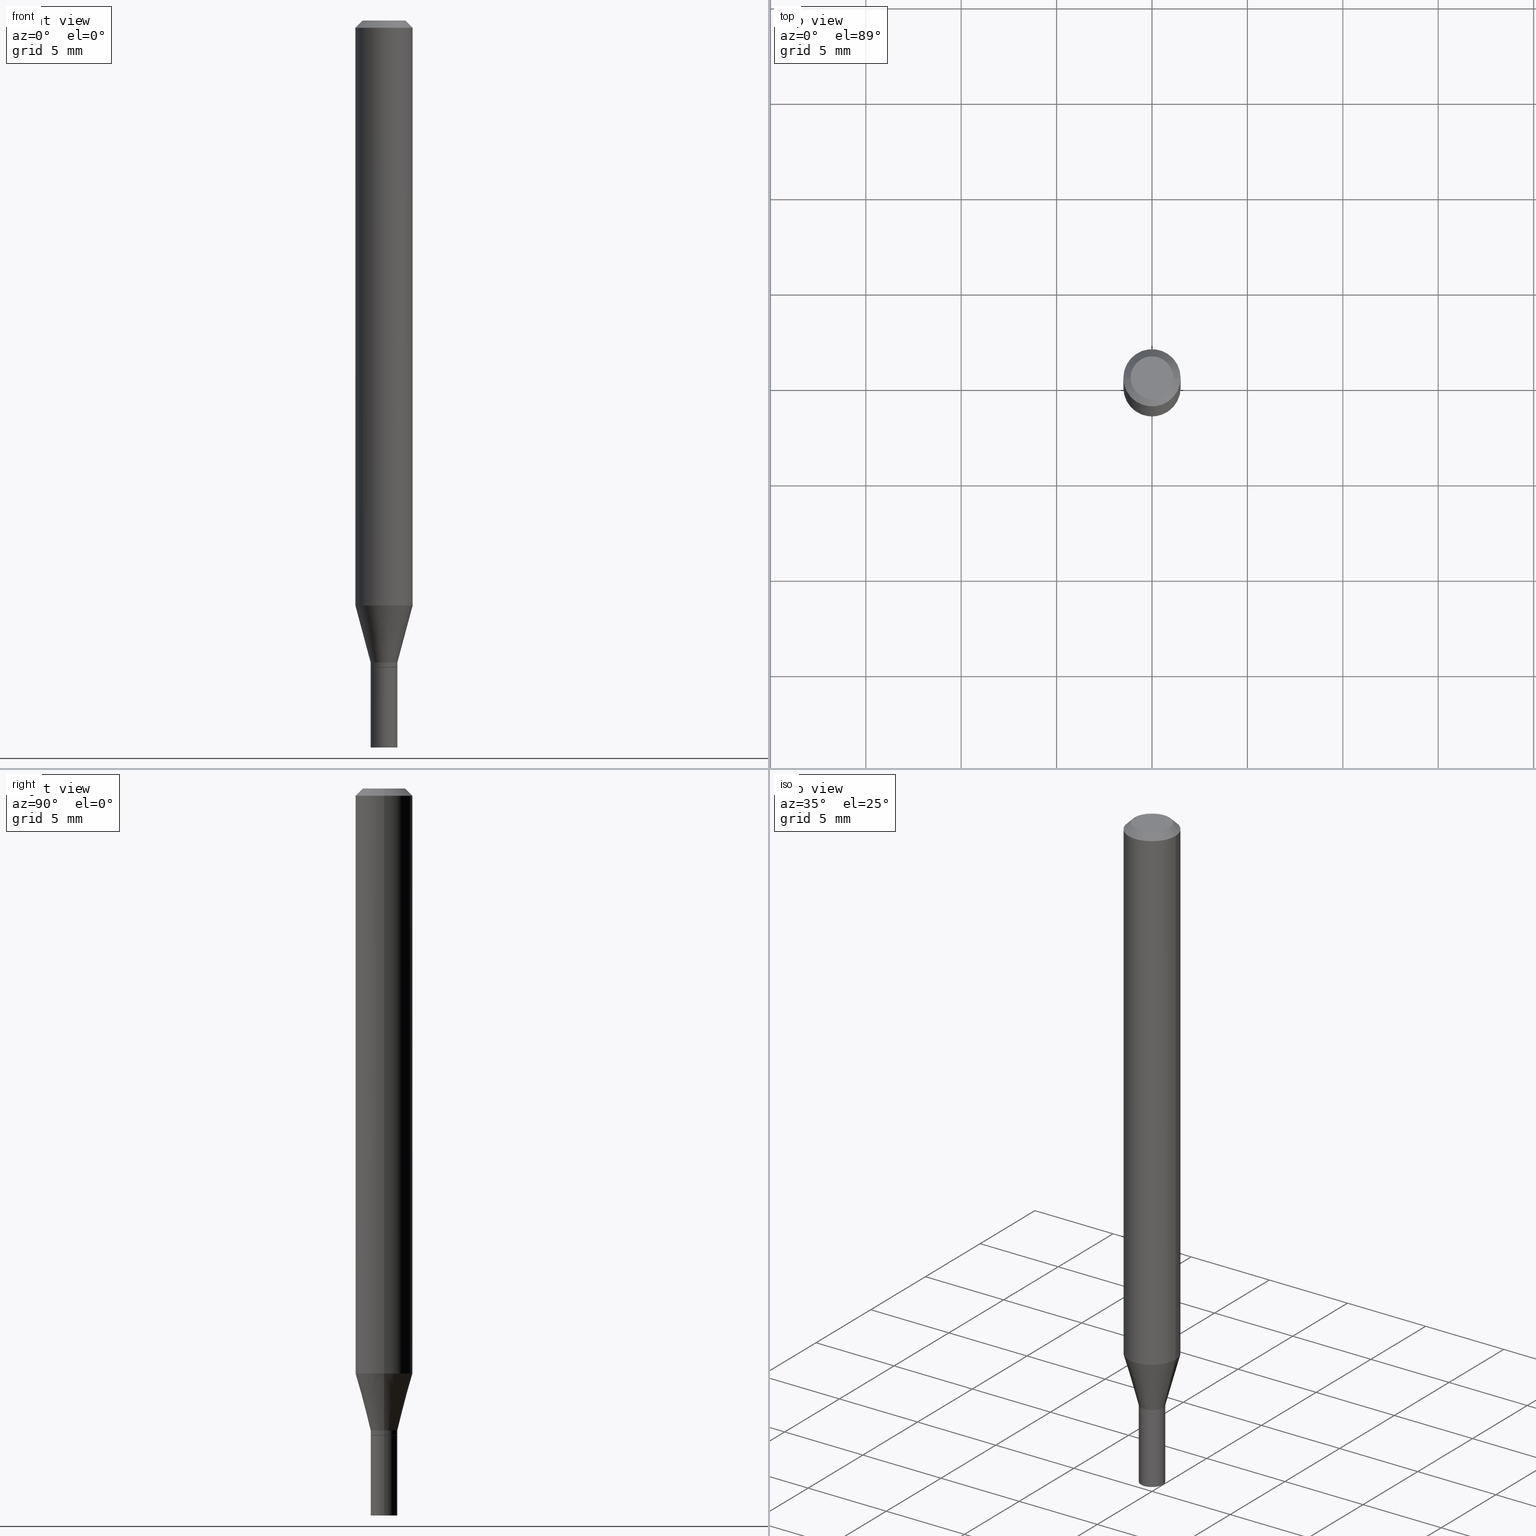
[diagram: canonical four-view strip — front | top / right | iso, engineering-drawing reading convention]
A machine part, canonical four-view strip (front | top / right | iso — engineering-drawing reading convention). The complete STEP part file that produces these views, byte-faithful:
ISO-10303-21;
HEADER;
FILE_DESCRIPTION (( 'STEP AP203' ),
    '1' );
FILE_NAME ('05067.STEP',
    '2024-03-14T17:41:36',
    ( '' ),
    ( '' ),
    'SwSTEP 2.0',
    'SolidWorks 2023',
    '' );
FILE_SCHEMA (( 'CONFIG_CONTROL_DESIGN' ));
ENDSEC;

DATA;
#1 = DIRECTION ( 'NONE',  ( 1.000000000000000000, -6.982962677686256455E-15, 0.000000000000000000 ) ) ;
#2 = FACE_OUTER_BOUND ( 'NONE', #313, .T. ) ;
#3 = PRODUCT_DEFINITION ( 'UNKNOWN', '', #79, #257 ) ;
#4 = CARTESIAN_POINT ( 'NONE',  ( 0.02705000000000000113, -4.848620135251475705E-15, -1.334600000000000009 ) ) ;
#5 = DIRECTION ( 'NONE',  ( -2.445468806185136877E-29, 3.491481338843145188E-15, 1.000000000000000000 ) ) ;
#6 = DIRECTION ( 'NONE',  ( 1.000000000000000000, -6.982962677686265922E-15, 4.876176775795936353E-29 ) ) ;
#7 = MANIFOLD_SOLID_BREP ( 'Body-Move/Copy2[2]', #139 ) ;
#8 = DIRECTION ( 'NONE',  ( 1.000000000000000000, -6.982962677686275388E-15, 0.000000000000000000 ) ) ;
#9 = AXIS2_PLACEMENT_3D ( 'NONE', #404, #80, #225 ) ;
#10 = CARTESIAN_POINT ( 'NONE',  ( -0.05904999999999999832, -1.713790139724500349E-15, -0.01499999999999999944 ) ) ;
#11 = CARTESIAN_POINT ( 'NONE',  ( 0.05904999999999999832, -4.574846268510561447E-16, -0.01499999999999999944 ) ) ;
#12 = PERSON_AND_ORGANIZATION_ROLE ( 'design_owner' ) ;
#13 = CARTESIAN_POINT ( 'NONE',  ( 0.000000000000000000, 0.000000000000000000, 0.000000000000000000 ) ) ;
#14 = DIRECTION ( 'NONE',  ( -2.445468806185136877E-29, 3.491481338843145188E-15, 1.000000000000000000 ) ) ;
#15 = ORIENTED_EDGE ( 'NONE', *, *, #127, .T. ) ;
#16 = APPROVAL_ROLE ( '' ) ;
#17 = CARTESIAN_POINT ( 'NONE',  ( 0.02754999999999992524, -4.850365875920897209E-15, -1.334100000000000064 ) ) ;
#18 = EDGE_LOOP ( 'NONE', ( #103, #212, #62, #462 ) ) ;
#19 = COORDINATED_UNIVERSAL_TIME_OFFSET ( 5, 0, .BEHIND. ) ;
#20 = AXIS2_PLACEMENT_3D ( 'NONE', #430, #189, #432 ) ;
#21 = ADVANCED_FACE ( 'NONE', ( #424 ), #318, .F. ) ;
#22 = VERTEX_POINT ( 'NONE', #391 ) ;
#23 = ORIENTED_EDGE ( 'NONE', *, *, #127, .F. ) ;
#24 = ORIENTED_EDGE ( 'NONE', *, *, #427, .F. ) ;
#25 =( LENGTH_UNIT ( ) NAMED_UNIT ( * ) SI_UNIT ( $, .METRE. ) );
#26 =( CONVERSION_BASED_UNIT ( 'INCH', #210 ) LENGTH_UNIT ( ) NAMED_UNIT ( #115 ) );
#27 = ORIENTED_EDGE ( 'NONE', *, *, #281, .F. ) ;
#28 = EDGE_CURVE ( 'NONE', #131, #102, #287, .T. ) ;
#29 = PRODUCT ( '05067', '05067', '', ( #150 ) ) ;
#30 = ORIENTED_EDGE ( 'NONE', *, *, #427, .T. ) ;
#31 = VERTEX_POINT ( 'NONE', #284 ) ;
#32 = CIRCLE ( 'NONE', #319, 0.04404999999999999888 ) ;
#33 = DIRECTION ( 'NONE',  ( -2.445468806185136597E-29, 3.491481338843145583E-15, 1.000000000000000000 ) ) ;
#34 = EDGE_CURVE ( 'NONE', #452, #138, #286, .T. ) ;
#35 = ORIENTED_EDGE ( 'NONE', *, *, #277, .T. ) ;
#36 = PLANE ( 'NONE',  #190 ) ;
#37 = LINE ( 'NONE', #264, #261 ) ;
#38 = EDGE_CURVE ( 'NONE', #102, #452, #353, .T. ) ;
#39 = CARTESIAN_POINT ( 'NONE',  ( 3.668203209277704895E-29, -5.237222008264718177E-15, -1.500000000000000222 ) ) ;
#40 = CIRCLE ( 'NONE', #153, 0.05904999999999999832 ) ;
#41 = VECTOR ( 'NONE', #260, 39.37007874015748143 ) ;
#42 = DIRECTION ( 'NONE',  ( 0.2588190451025213501, 1.565188264969621968E-15, 0.9659258262890682012 ) ) ;
#43 = FACE_OUTER_BOUND ( 'NONE', #105, .T. ) ;
#44 = FACE_OUTER_BOUND ( 'NONE', #67, .T. ) ;
#45 = DIRECTION ( 'NONE',  ( -2.438088387897960049E-29, 3.491481338843145188E-15, 1.000000000000000000 ) ) ;
#46 = APPROVAL_STATUS ( 'not_yet_approved' ) ;
#47 = CARTESIAN_POINT ( 'NONE',  ( 3.263722668734683183E-29, -4.659730994820061919E-15, -1.334600000000000009 ) ) ;
#48 = CYLINDRICAL_SURFACE ( 'NONE', #326, 0.02754999999999992524 ) ;
#49 = VECTOR ( 'NONE', #307, 39.37007874015748143 ) ;
#50 = EDGE_CURVE ( 'NONE', #311, #282, #40, .T. ) ;
#51 = PERSON_AND_ORGANIZATION ( #107, #253 ) ;
#52 = DIRECTION ( 'NONE',  ( 1.000000000000000000, -6.982962677686265133E-15, 0.000000000000000000 ) ) ;
#53 = CARTESIAN_POINT ( 'NONE',  ( -0.05905000000000000526, -3.794783544832691928E-15, -1.207040399561580157 ) ) ;
#54 = ORIENTED_EDGE ( 'NONE', *, *, #277, .F. ) ;
#55 = COORDINATED_UNIVERSAL_TIME_OFFSET ( 5, 0, .BEHIND. ) ;
#56 = DIRECTION ( 'NONE',  ( -2.445468806185136877E-29, 3.491481338843145188E-15, 1.000000000000000000 ) ) ;
#57 = EDGE_LOOP ( 'NONE', ( #206, #459, #35, #71 ) ) ;
#58 = ORIENTED_EDGE ( 'NONE', *, *, #410, .T. ) ;
#59 = APPROVAL_ROLE ( '' ) ;
#60 = VECTOR ( 'NONE', #42, 39.37007874015747433 ) ;
#61 = EDGE_LOOP ( 'NONE', ( #244, #165, #280, #96 ) ) ;
#62 = ORIENTED_EDGE ( 'NONE', *, *, #420, .F. ) ;
#63 = EDGE_LOOP ( 'NONE', ( #141, #425, #392, #346 ) ) ;
#64 = CIRCLE ( 'NONE', #415, 0.02755000000000000157 ) ;
#65 = AXIS2_PLACEMENT_3D ( 'NONE', #441, #86, #179 ) ;
#66 = EDGE_CURVE ( 'NONE', #387, #22, #32, .T. ) ;
#67 = EDGE_LOOP ( 'NONE', ( #342, #30, #423, #384 ) ) ;
#68 = AXIS2_PLACEMENT_3D ( 'NONE', #316, #248, #460 ) ;
#69 = ADVANCED_BREP_SHAPE_REPRESENTATION ( '05067', ( #159, #7, #361 ), #383 ) ;
#70 = CIRCLE ( 'NONE', #461, 0.02754999999999992524 ) ;
#71 = ORIENTED_EDGE ( 'NONE', *, *, #256, .T. ) ;
#72 = CYLINDRICAL_SURFACE ( 'NONE', #163, 0.02754999999999992524 ) ;
#73 = ADVANCED_FACE ( 'NONE', ( #402 ), #180, .T. ) ;
#74 = CARTESIAN_POINT ( 'NONE',  ( 3.668203209277705088E-31, -5.237222008264718399E-17, -0.01499999999999999944 ) ) ;
#75 = CARTESIAN_POINT ( 'NONE',  ( -0.02705000000000000113, -4.464879957622843487E-15, -1.334600000000000009 ) ) ;
#76 = LINE ( 'NONE', #444, #233 ) ;
#77 = LINE ( 'NONE', #11, #278 ) ;
#78 = CLOSED_SHELL ( 'NONE', ( #389, #21, #85, #234 ) ) ;
#79 = PRODUCT_DEFINITION_FORMATION_WITH_SPECIFIED_SOURCE ( 'ANY', '', #29, .NOT_KNOWN. ) ;
#80 = DIRECTION ( 'NONE',  ( -2.445468806185136597E-29, 3.491481338843145583E-15, 1.000000000000000000 ) ) ;
#81 = CARTESIAN_POINT ( 'NONE',  ( 0.02755000000000000157, -5.429602630034974970E-15, -1.500000000000000222 ) ) ;
#82 = APPLICATION_PROTOCOL_DEFINITION ( 'international standard', 'config_control_design', 1994, #317 ) ;
#83 = FACE_OUTER_BOUND ( 'NONE', #93, .T. ) ;
#84 = CARTESIAN_POINT ( 'NONE',  ( 0.02705000000000000113, -4.848620135251475705E-15, -1.334600000000000009 ) ) ;
#85 = ADVANCED_FACE ( 'NONE', ( #43 ), #439, .T. ) ;
#86 = DIRECTION ( 'NONE',  ( -2.445468806185136597E-29, 3.491481338843145583E-15, 1.000000000000000000 ) ) ;
#87 = CARTESIAN_POINT ( 'NONE',  ( 0.05904999999999999832, -4.647161662000212105E-16, -0.01499999999999999944 ) ) ;
#88 = PERSON_AND_ORGANIZATION ( #107, #253 ) ;
#89 = PLANE ( 'NONE',  #453 ) ;
#90 = EDGE_CURVE ( 'NONE', #91, #250, #330, .T. ) ;
#91 = VERTEX_POINT ( 'NONE', #81 ) ;
#92 = DATE_AND_TIME ( #276, #95 ) ;
#93 = EDGE_LOOP ( 'NONE', ( #197, #324, #411, #239 ) ) ;
#94 = VECTOR ( 'NONE', #215, 39.37007874015748143 ) ;
#95 = LOCAL_TIME ( 13, 41, 36.00000000000000000, #130 ) ;
#96 = ORIENTED_EDGE ( 'NONE', *, *, #401, .F. ) ;
#97 = APPROVAL ( #46, 'UNSPECIFIED' ) ;
#98 = ORIENTED_EDGE ( 'NONE', *, *, #28, .F. ) ;
#99 =( NAMED_UNIT ( * ) SI_UNIT ( $, .STERADIAN. ) SOLID_ANGLE_UNIT ( ) );
#100 = CIRCLE ( 'NONE', #398, 0.02755000000000000157 ) ;
#101 = ADVANCED_FACE ( 'NONE', ( #148 ), #293, .F. ) ;
#102 = VERTEX_POINT ( 'NONE', #75 ) ;
#103 = ORIENTED_EDGE ( 'NONE', *, *, #50, .T. ) ;
#104 = EDGE_LOOP ( 'NONE', ( #426, #167, #129, #418 ) ) ;
#105 = EDGE_LOOP ( 'NONE', ( #174, #15, #142, #355 ) ) ;
#106 = AXIS2_PLACEMENT_3D ( 'NONE', #184, #187, #118 ) ;
#107 = PERSON ( 'UNSPECIFIED', 'UNSPECIFIED', 'UNSPECIFIED', ('UNSPECIFIED'), ('UNSPECIFIED'), ('UNSPECIFIED') ) ;
#108 = DIRECTION ( 'NONE',  ( -2.445468806185136597E-29, 3.491481338843145583E-15, 1.000000000000000000 ) ) ;
#109 = EDGE_CURVE ( 'NONE', #91, #414, #64, .T. ) ;
#110 = CARTESIAN_POINT ( 'NONE',  ( 3.263722668734683183E-29, -4.659730994820061919E-15, -1.334600000000000009 ) ) ;
#111 = DIRECTION ( 'NONE',  ( 2.438088387897960049E-29, -3.491481338843145188E-15, -1.000000000000000000 ) ) ;
#112 = CARTESIAN_POINT ( 'NONE',  ( 0.05905000000000000526, -4.626702976416405553E-15, -1.207040399561580157 ) ) ;
#113 = DIRECTION ( 'NONE',  ( -2.445468806185136597E-29, 3.491481338843145583E-15, 1.000000000000000000 ) ) ;
#114 = CONICAL_SURFACE ( 'NONE', #65, 0.02754999999999992524, 0.2617993877991500740 ) ;
#115 = DIMENSIONAL_EXPONENTS ( 1.000000000000000000, 0.000000000000000000, 0.000000000000000000, 0.000000000000000000, 0.000000000000000000, 0.000000000000000000, 0.000000000000000000 ) ;
#116 = DIRECTION ( 'NONE',  ( -0.2588190451025213501, 5.211531920934551042E-15, 0.9659258262890682012 ) ) ;
#117 = ADVANCED_FACE ( 'NONE', ( #219 ), #375, .T. ) ;
#118 = DIRECTION ( 'NONE',  ( -1.000000000000000000, 6.982962677686266711E-15, 0.000000000000000000 ) ) ;
#119 = UNCERTAINTY_MEASURE_WITH_UNIT (LENGTH_MEASURE( 1.000000000000000082E-05 ), #26, 'distance_accuracy_value', 'NONE');
#120 = PERSON_AND_ORGANIZATION ( #107, #253 ) ;
#121 = FACE_OUTER_BOUND ( 'NONE', #386, .T. ) ;
#122 = DIRECTION ( 'NONE',  ( -1.000000000000000000, 6.982962677686265922E-15, -4.876176775795935793E-29 ) ) ;
#123 = DATE_AND_TIME ( #227, #242 ) ;
#124 = CARTESIAN_POINT ( 'NONE',  ( 3.262499934331591502E-29, -4.657985254150640416E-15, -1.334100000000000064 ) ) ;
#125 = CARTESIAN_POINT ( 'NONE',  ( 3.263722668734683183E-29, -4.659730994820061919E-15, -1.334600000000000009 ) ) ;
#126 = CONICAL_SURFACE ( 'NONE', #20, 0.02705000000000000113, 0.7853981633974739252 ) ;
#127 = EDGE_CURVE ( 'NONE', #414, #91, #100, .T. ) ;
#128 = CC_DESIGN_APPROVAL ( #222, ( #3 ) ) ;
#129 = ORIENTED_EDGE ( 'NONE', *, *, #314, .F. ) ;
#130 = COORDINATED_UNIVERSAL_TIME_OFFSET ( 5, 0, .BEHIND. ) ;
#131 = VERTEX_POINT ( 'NONE', #84 ) ;
#132 = APPROVAL_STATUS ( 'not_yet_approved' ) ;
#133 = ORIENTED_EDGE ( 'NONE', *, *, #90, .F. ) ;
#134 = CC_DESIGN_APPROVAL ( #216, ( #79 ) ) ;
#135 = CC_DESIGN_PERSON_AND_ORGANIZATION_ASSIGNMENT ( #88, #380, ( #164 ) ) ;
#136 = ORIENTED_EDGE ( 'NONE', *, *, #351, .T. ) ;
#137 = CARTESIAN_POINT ( 'NONE',  ( 8.019272414352406998E-45, -1.144939568028632061E-30, -3.279237254660487495E-16 ) ) ;
#138 = VERTEX_POINT ( 'NONE', #229 ) ;
#139 = CLOSED_SHELL ( 'NONE', ( #195, #143, #395, #309, #457, #117, #344, #73, #268, #101, #185, #171 ) ) ;
#140 = DIRECTION ( 'NONE',  ( 1.000000000000000000, -6.982962677686273810E-15, 0.000000000000000000 ) ) ;
#141 = ORIENTED_EDGE ( 'NONE', *, *, #34, .F. ) ;
#142 = ORIENTED_EDGE ( 'NONE', *, *, #90, .T. ) ;
#143 = ADVANCED_FACE ( 'NONE', ( #365 ), #336, .T. ) ;
#144 = CARTESIAN_POINT ( 'NONE',  ( 0.000000000000000000, 0.000000000000000000, 0.000000000000000000 ) ) ;
#145 = DIRECTION ( 'NONE',  ( -2.445468806185136597E-29, 3.491481338843145583E-15, 1.000000000000000000 ) ) ;
#146 = FACE_OUTER_BOUND ( 'NONE', #450, .T. ) ;
#147 = CARTESIAN_POINT ( 'NONE',  ( 0.04404999999999999888, -3.798447818264465995E-16, -3.279237254660463336E-16 ) ) ;
#148 = FACE_OUTER_BOUND ( 'NONE', #390, .T. ) ;
#149 = CC_DESIGN_DATE_AND_TIME_ASSIGNMENT ( #236, #435, ( #3 ) ) ;
#150 = MECHANICAL_CONTEXT ( 'NONE', #302, 'mechanical' ) ;
#151 = CYLINDRICAL_SURFACE ( 'NONE', #354, 0.02755000000000000157 ) ;
#152 = DIRECTION ( 'NONE',  ( 1.000000000000000000, -6.982962677686273810E-15, 0.000000000000000000 ) ) ;
#153 = AXIS2_PLACEMENT_3D ( 'NONE', #323, #322, #458 ) ;
#154 = CIRCLE ( 'NONE', #312, 0.02755000000000000157 ) ;
#155 = PERSON_AND_ORGANIZATION ( #107, #253 ) ;
#156 = DIRECTION ( 'NONE',  ( -2.445468806185136877E-29, 3.491481338843145188E-15, 1.000000000000000000 ) ) ;
#157 = DIRECTION ( 'NONE',  ( 1.000000000000000000, -6.982962677686265922E-15, 4.819687581474398999E-29 ) ) ;
#158 = CALENDAR_DATE ( 2024, 14, 3 ) ;
#159 = MANIFOLD_SOLID_BREP ( 'Body-Move/Copy2[1]', #78 ) ;
#160 = CARTESIAN_POINT ( 'NONE',  ( 0.05904999999999999832, -4.123439461173740327E-16, 2.879382386107500220E-30 ) ) ;
#161 = PERSON_AND_ORGANIZATION_ROLE ( 'creator' ) ;
#162 = CARTESIAN_POINT ( 'NONE',  ( -0.05904999999999999832, 3.599717260347268549E-16, -0.01499999999999999944 ) ) ;
#163 = AXIS2_PLACEMENT_3D ( 'NONE', #338, #397, #255 ) ;
#164 = SECURITY_CLASSIFICATION ( '', '', #166 ) ;
#165 = ORIENTED_EDGE ( 'NONE', *, *, #281, .T. ) ;
#166 = SECURITY_CLASSIFICATION_LEVEL ( 'unclassified' ) ;
#167 = ORIENTED_EDGE ( 'NONE', *, *, #38, .T. ) ;
#168 = EDGE_CURVE ( 'NONE', #22, #387, #170, .T. ) ;
#169 = ORIENTED_EDGE ( 'NONE', *, *, #109, .T. ) ;
#170 = CIRCLE ( 'NONE', #199, 0.04404999999999999888 ) ;
#171 = ADVANCED_FACE ( 'NONE', ( #254 ), #48, .T. ) ;
#172 = ORIENTED_EDGE ( 'NONE', *, *, #463, .F. ) ;
#173 = ORIENTED_EDGE ( 'NONE', *, *, #34, .T. ) ;
#174 = ORIENTED_EDGE ( 'NONE', *, *, #333, .F. ) ;
#175 = CARTESIAN_POINT ( 'NONE',  ( -0.02754999999999992524, 1.957545237019070700E-16, -1.355166617365222887E-30 ) ) ;
#176 = DIRECTION ( 'NONE',  ( -0.7071067811865656694, 7.493145998870420424E-15, 0.7071067811865294761 ) ) ;
#177 = CC_DESIGN_DATE_AND_TIME_ASSIGNMENT ( #194, #343, ( #164 ) ) ;
#178 = DIRECTION ( 'NONE',  ( -2.445468806185136597E-29, 3.491481338843145583E-15, 1.000000000000000000 ) ) ;
#179 = DIRECTION ( 'NONE',  ( 1.000000000000000000, -6.982962677686275388E-15, 0.000000000000000000 ) ) ;
#180 = CONICAL_SURFACE ( 'NONE', #106, 0.05904999999999999832, 0.7853981633974593812 ) ;
#181 = CIRCLE ( 'NONE', #214, 0.02754999999999992524 ) ;
#182 = DIRECTION ( 'NONE',  ( -2.445468806185136597E-29, 3.491481338843145583E-15, 1.000000000000000000 ) ) ;
#183 = DIRECTION ( 'NONE',  ( -2.445468806185136597E-29, 3.491481338843145583E-15, 1.000000000000000000 ) ) ;
#184 = CARTESIAN_POINT ( 'NONE',  ( 3.668203209277705088E-31, -5.237222008264718399E-17, -0.01499999999999999944 ) ) ;
#185 = ADVANCED_FACE ( 'NONE', ( #297 ), #126, .T. ) ;
#186 = CARTESIAN_POINT ( 'NONE',  ( 0.02754999999999992524, -4.817196803201886274E-15, -1.324599999999999778 ) ) ;
#187 = DIRECTION ( 'NONE',  ( 2.445468806185136597E-29, -3.491481338843145583E-15, -1.000000000000000000 ) ) ;
#188 = DIRECTION ( 'NONE',  ( 1.000000000000000000, -6.982962677686275388E-15, 0.000000000000000000 ) ) ;
#189 = DIRECTION ( 'NONE',  ( -2.445468806185136597E-29, 3.491481338843145583E-15, 1.000000000000000000 ) ) ;
#190 = AXIS2_PLACEMENT_3D ( 'NONE', #291, #111, #224 ) ;
#191 = DIRECTION ( 'NONE',  ( 0.000000000000000000, 0.000000000000000000, 1.000000000000000000 ) ) ;
#192 = DIRECTION ( 'NONE',  ( 1.000000000000000000, -6.982962677686266711E-15, 4.876176775795936353E-29 ) ) ;
#193 = FACE_OUTER_BOUND ( 'NONE', #18, .T. ) ;
#194 = DATE_AND_TIME ( #413, #296 ) ;
#195 = ADVANCED_FACE ( 'NONE', ( #2 ), #72, .T. ) ;
#196 = LINE ( 'NONE', #162, #49 ) ;
#197 = ORIENTED_EDGE ( 'NONE', *, *, #451, .F. ) ;
#198 = PERSON_AND_ORGANIZATION_ROLE ( 'design_supplier' ) ;
#199 = AXIS2_PLACEMENT_3D ( 'NONE', #373, #405, #157 ) ;
#200 = AXIS2_PLACEMENT_3D ( 'NONE', #331, #299, #292 ) ;
#201 = ORIENTED_EDGE ( 'NONE', *, *, #66, .F. ) ;
#202 = CARTESIAN_POINT ( 'NONE',  ( 0.000000000000000000, 0.000000000000000000, 0.000000000000000000 ) ) ;
#203 = EDGE_CURVE ( 'NONE', #387, #279, #77, .T. ) ;
#204 = ORIENTED_EDGE ( 'NONE', *, *, #333, .T. ) ;
#205 = APPLICATION_PROTOCOL_DEFINITION ( 'international standard', 'config_control_design', 1994, #302 ) ;
#206 = ORIENTED_EDGE ( 'NONE', *, *, #203, .F. ) ;
#207 = ORIENTED_EDGE ( 'NONE', *, *, #66, .T. ) ;
#208 = VECTOR ( 'NONE', #176, 39.37007874015748143 ) ;
#209 = EDGE_CURVE ( 'NONE', #31, #138, #347, .T. ) ;
#210 = LENGTH_MEASURE_WITH_UNIT ( LENGTH_MEASURE( 0.02539999999999999897 ), #25 );
#211 = EDGE_LOOP ( 'NONE', ( #235, #23 ) ) ;
#212 = ORIENTED_EDGE ( 'NONE', *, *, #451, .T. ) ;
#213 = CARTESIAN_POINT ( 'NONE',  ( 3.263722668734683183E-29, -4.659730994820061919E-15, -1.334600000000000009 ) ) ;
#214 = AXIS2_PLACEMENT_3D ( 'NONE', #124, #406, #188 ) ;
#215 = DIRECTION ( 'NONE',  ( -2.445468806185136877E-29, 3.491481338843145188E-15, 1.000000000000000000 ) ) ;
#216 = APPROVAL ( #448, 'UNSPECIFIED' ) ;
#217 = CARTESIAN_POINT ( 'NONE',  ( 3.263722668734683183E-29, -4.659730994820061919E-15, -1.334600000000000009 ) ) ;
#218 = DIRECTION ( 'NONE',  ( 1.000000000000000000, -6.982962677686266711E-15, 0.000000000000000000 ) ) ;
#219 = FACE_OUTER_BOUND ( 'NONE', #379, .T. ) ;
#220 = DIRECTION ( 'NONE',  ( -2.445468806185136597E-29, 3.491481338843145583E-15, 1.000000000000000000 ) ) ;
#221 = AXIS2_PLACEMENT_3D ( 'NONE', #332, #370, #8 ) ;
#222 = APPROVAL ( #132, 'UNSPECIFIED' ) ;
#223 = CIRCLE ( 'NONE', #337, 0.02755000000000000157 ) ;
#224 = DIRECTION ( 'NONE',  ( -1.000000000000000000, 6.982962677686265922E-15, -4.876176775795935793E-29 ) ) ;
#225 = DIRECTION ( 'NONE',  ( 1.000000000000000000, -6.982962677686275388E-15, 0.000000000000000000 ) ) ;
#226 = DIRECTION ( 'NONE',  ( 1.000000000000000000, -6.982962677686265922E-15, 4.876176775795935793E-29 ) ) ;
#227 = CALENDAR_DATE ( 2024, 14, 3 ) ;
#228 = CARTESIAN_POINT ( 'NONE',  ( -0.02755000000000000157, 1.957545237019076124E-16, -1.355166617365226565E-30 ) ) ;
#229 = CARTESIAN_POINT ( 'NONE',  ( -0.02754999999999992524, -4.111922601281208218E-15, -1.324599999999999778 ) ) ;
#230 = CARTESIAN_POINT ( 'NONE',  ( 2.951779644933087895E-29, -4.214359030299031421E-15, -1.207040399561580157 ) ) ;
#231 = VECTOR ( 'NONE', #56, 39.37007874015748143 ) ;
#232 = CARTESIAN_POINT ( 'NONE',  ( 0.02755000000000000157, -4.852111616590317923E-15, -1.334600000000000009 ) ) ;
#233 = VECTOR ( 'NONE', #116, 39.37007874015747433 ) ;
#234 = ADVANCED_FACE ( 'NONE', ( #146 ), #36, .F. ) ;
#235 = ORIENTED_EDGE ( 'NONE', *, *, #109, .F. ) ;
#236 = DATE_AND_TIME ( #294, #436 ) ;
#237 = LINE ( 'NONE', #160, #231 ) ;
#238 = ORIENTED_EDGE ( 'NONE', *, *, #203, .T. ) ;
#239 = ORIENTED_EDGE ( 'NONE', *, *, #256, .F. ) ;
#240 = EDGE_CURVE ( 'NONE', #275, #31, #368, .T. ) ;
#241 = AXIS2_PLACEMENT_3D ( 'NONE', #213, #33, #140 ) ;
#242 = LOCAL_TIME ( 13, 41, 36.00000000000000000, #269 ) ;
#243 = ORIENTED_EDGE ( 'NONE', *, *, #209, .F. ) ;
#244 = ORIENTED_EDGE ( 'NONE', *, *, #38, .F. ) ;
#245 = DIRECTION ( 'NONE',  ( 1.000000000000000000, -6.982962677686265922E-15, 4.819687581474398999E-29 ) ) ;
#246 = CIRCLE ( 'NONE', #306, 0.02705000000000000113 ) ;
#247 = AXIS2_PLACEMENT_3D ( 'NONE', #290, #183, #192 ) ;
#248 = DIRECTION ( 'NONE',  ( -2.438088387897960049E-29, 3.491481338843145188E-15, 1.000000000000000000 ) ) ;
#249 = EDGE_CURVE ( 'NONE', #311, #279, #237, .T. ) ;
#250 = VERTEX_POINT ( 'NONE', #232 ) ;
#251 = AXIS2_PLACEMENT_3D ( 'NONE', #144, #396, #262 ) ;
#252 = AXIS2_PLACEMENT_3D ( 'NONE', #273, #407, #267 ) ;
#253 = ORGANIZATION ( 'UNSPECIFIED', 'UNSPECIFIED', '' ) ;
#254 = FACE_OUTER_BOUND ( 'NONE', #63, .T. ) ;
#255 = DIRECTION ( 'NONE',  ( 1.000000000000000000, -6.982962677686266711E-15, 4.876176775795936353E-29 ) ) ;
#256 = EDGE_CURVE ( 'NONE', #447, #279, #454, .T. ) ;
#257 = DESIGN_CONTEXT ( 'detailed design', #317, 'design' ) ;
#258 = DIRECTION ( 'NONE',  ( -2.445468806185136597E-29, 3.491481338843145583E-15, 1.000000000000000000 ) ) ;
#259 = DIRECTION ( 'NONE',  ( -2.445468806185136597E-29, 3.491481338843145583E-15, 1.000000000000000000 ) ) ;
#260 = DIRECTION ( 'NONE',  ( 0.7071067811865656694, -2.468850131082446387E-15, 0.7071067811865294761 ) ) ;
#261 = VECTOR ( 'NONE', #156, 39.37007874015748143 ) ;
#262 = DIRECTION ( 'NONE',  ( 1.000000000000000000, -6.982962677686265922E-15, 4.876176775795936353E-29 ) ) ;
#263 = COORDINATED_UNIVERSAL_TIME_OFFSET ( 5, 0, .BEHIND. ) ;
#264 = CARTESIAN_POINT ( 'NONE',  ( -0.05904999999999999832, 4.195754854663391478E-16, -2.904631170795521892E-30 ) ) ;
#265 = CARTESIAN_POINT ( 'NONE',  ( 3.668203209277704895E-29, -5.237222008264718177E-15, -1.500000000000000222 ) ) ;
#266 = DIRECTION ( 'NONE',  ( -2.445468806185136597E-29, 3.491481338843145583E-15, 1.000000000000000000 ) ) ;
#267 = DIRECTION ( 'NONE',  ( 1.000000000000000000, -6.982962677686266711E-15, 0.000000000000000000 ) ) ;
#268 = ADVANCED_FACE ( 'NONE', ( #409 ), #89, .F. ) ;
#269 = COORDINATED_UNIVERSAL_TIME_OFFSET ( 5, 0, .BEHIND. ) ;
#270 = FACE_OUTER_BOUND ( 'NONE', #285, .T. ) ;
#271 = ORIENTED_EDGE ( 'NONE', *, *, #410, .F. ) ;
#272 = AXIS2_PLACEMENT_3D ( 'NONE', #217, #45, #226 ) ;
#273 = CARTESIAN_POINT ( 'NONE',  ( 3.668203209277705088E-31, -5.237222008264718399E-17, -0.01499999999999999944 ) ) ;
#274 = CIRCLE ( 'NONE', #9, 0.02754999999999992524 ) ;
#275 = VERTEX_POINT ( 'NONE', #17 ) ;
#276 = CALENDAR_DATE ( 2024, 14, 3 ) ;
#277 = EDGE_CURVE ( 'NONE', #22, #447, #196, .T. ) ;
#278 = VECTOR ( 'NONE', #301, 39.37007874015748143 ) ;
#279 = VERTEX_POINT ( 'NONE', #87 ) ;
#280 = ORIENTED_EDGE ( 'NONE', *, *, #358, .T. ) ;
#281 = EDGE_CURVE ( 'NONE', #102, #131, #246, .T. ) ;
#282 = VERTEX_POINT ( 'NONE', #53 ) ;
#283 = PRODUCT_DEFINITION_SHAPE ( 'NONE', 'NONE',  #3 ) ;
#284 = CARTESIAN_POINT ( 'NONE',  ( 0.02754999999999992524, -4.817196803201886274E-15, -1.324599999999999778 ) ) ;
#285 = EDGE_LOOP ( 'NONE', ( #169, #204, #271, #133 ) ) ;
#286 = LINE ( 'NONE', #175, #94 ) ;
#287 = CIRCLE ( 'NONE', #241, 0.02705000000000000113 ) ;
#288 = APPROVAL_PERSON_ORGANIZATION ( #339, #222, #59 ) ;
#289 = CARTESIAN_POINT ( 'NONE',  ( 0.02755000000000000157, -1.923806217702566451E-16, 1.343386701731780509E-30 ) ) ;
#290 = CARTESIAN_POINT ( 'NONE',  ( 0.000000000000000000, 0.000000000000000000, 0.000000000000000000 ) ) ;
#291 = CARTESIAN_POINT ( 'NONE',  ( 1.923806217702892842E-16, 0.02754999999999534210, -1.334600000000000009 ) ) ;
#292 = DIRECTION ( 'NONE',  ( -1.000000000000000000, 6.982962677686266711E-15, 0.000000000000000000 ) ) ;
#293 = PLANE ( 'NONE',  #272 ) ;
#294 = CALENDAR_DATE ( 2024, 14, 3 ) ;
#295 = DIRECTION ( 'NONE',  ( -2.445468806185136597E-29, 3.491481338843145583E-15, 1.000000000000000000 ) ) ;
#296 = LOCAL_TIME ( 13, 41, 36.00000000000000000, #55 ) ;
#297 = FACE_OUTER_BOUND ( 'NONE', #61, .T. ) ;
#298 = PERSON_AND_ORGANIZATION ( #107, #253 ) ;
#299 = DIRECTION ( 'NONE',  ( 2.445468806185136597E-29, -3.491481338843145583E-15, -1.000000000000000000 ) ) ;
#300 = CC_DESIGN_PERSON_AND_ORGANIZATION_ASSIGNMENT ( #374, #198, ( #79 ) ) ;
#301 = DIRECTION ( 'NONE',  ( 0.7071067811865553443, -7.319954787623282867E-15, -0.7071067811865396902 ) ) ;
#302 = APPLICATION_CONTEXT ( 'configuration controlled 3d designs of mechanical parts and assemblies' ) ;
#303 = DATE_AND_TIME ( #158, #377 ) ;
#304 = CARTESIAN_POINT ( 'NONE',  ( -0.02755000000000000157, -4.752721977840483101E-15, -1.500000000000000222 ) ) ;
#305 = DIRECTION ( 'NONE',  ( 1.000000000000000000, -6.982962677686273810E-15, 0.000000000000000000 ) ) ;
#306 = AXIS2_PLACEMENT_3D ( 'NONE', #125, #378, #305 ) ;
#307 = DIRECTION ( 'NONE',  ( -0.7071067811865553443, 2.468850131082339102E-15, -0.7071067811865396902 ) ) ;
#308 = CC_DESIGN_SECURITY_CLASSIFICATION ( #164, ( #79 ) ) ;
#309 = ADVANCED_FACE ( 'NONE', ( #193 ), #341, .T. ) ;
#310 = EDGE_LOOP ( 'NONE', ( #456, #207 ) ) ;
#311 = VERTEX_POINT ( 'NONE', #112 ) ;
#312 = AXIS2_PLACEMENT_3D ( 'NONE', #110, #220, #372 ) ;
#313 = EDGE_LOOP ( 'NONE', ( #464, #173, #243, #349 ) ) ;
#314 = EDGE_CURVE ( 'NONE', #275, #452, #181, .T. ) ;
#315 = CARTESIAN_POINT ( 'NONE',  ( -0.02705000000000000113, -4.467529184796954688E-15, -1.334600000000000009 ) ) ;
#316 = CARTESIAN_POINT ( 'NONE',  ( 3.576687321579069994E-29, -5.368277968210015545E-15, -1.500000000000000222 ) ) ;
#317 = APPLICATION_CONTEXT ( 'configuration controlled 3d designs of mechanical parts and assemblies' ) ;
#318 = PLANE ( 'NONE',  #68 ) ;
#319 = AXIS2_PLACEMENT_3D ( 'NONE', #137, #419, #245 ) ;
#320 = CC_DESIGN_PERSON_AND_ORGANIZATION_ASSIGNMENT ( #51, #371, ( #3 ) ) ;
#321 = AXIS2_PLACEMENT_3D ( 'NONE', #74, #376, #218 ) ;
#322 = DIRECTION ( 'NONE',  ( -2.445468806185136597E-29, 3.491481338843145583E-15, 1.000000000000000000 ) ) ;
#323 = CARTESIAN_POINT ( 'NONE',  ( 2.951779644933087895E-29, -4.214359030299031421E-15, -1.207040399561580157 ) ) ;
#324 = ORIENTED_EDGE ( 'NONE', *, *, #463, .T. ) ;
#325 = DIRECTION ( 'NONE',  ( 1.000000000000000000, -6.982962677686256455E-15, 0.000000000000000000 ) ) ;
#326 = AXIS2_PLACEMENT_3D ( 'NONE', #328, #113, #394 ) ;
#327 = LINE ( 'NONE', #228, #466 ) ;
#328 = CARTESIAN_POINT ( 'NONE',  ( 0.000000000000000000, 0.000000000000000000, 0.000000000000000000 ) ) ;
#329 = LINE ( 'NONE', #4, #41 ) ;
#330 = LINE ( 'NONE', #289, #352 ) ;
#331 = CARTESIAN_POINT ( 'NONE',  ( 3.668203209277705088E-31, -5.237222008264718399E-17, -0.01499999999999999944 ) ) ;
#332 = CARTESIAN_POINT ( 'NONE',  ( 3.239267980672831637E-29, -4.624816181431630270E-15, -1.324599999999999778 ) ) ;
#333 = EDGE_CURVE ( 'NONE', #414, #417, #327, .T. ) ;
#334 = APPROVAL_DATE_TIME ( #92, #97 ) ;
#335 = CARTESIAN_POINT ( 'NONE',  ( -0.02755000000000000157, -4.752721977840483101E-15, -1.334600000000000009 ) ) ;
#336 = CONICAL_SURFACE ( 'NONE', #421, 0.02705000000000000113, 0.7853981633974739252 ) ;
#337 = AXIS2_PLACEMENT_3D ( 'NONE', #47, #438, #1 ) ;
#338 = CARTESIAN_POINT ( 'NONE',  ( 0.000000000000000000, 0.000000000000000000, 0.000000000000000000 ) ) ;
#339 = PERSON_AND_ORGANIZATION ( #107, #253 ) ;
#340 = LINE ( 'NONE', #186, #60 ) ;
#341 = CYLINDRICAL_SURFACE ( 'NONE', #416, 0.05904999999999999832 ) ;
#342 = ORIENTED_EDGE ( 'NONE', *, *, #209, .T. ) ;
#343 = DATE_TIME_ROLE ( 'classification_date' ) ;
#344 = ADVANCED_FACE ( 'NONE', ( #83 ), #367, .T. ) ;
#345 = DIRECTION ( 'NONE',  ( 2.438088387897960049E-29, -3.491481338843145188E-15, -1.000000000000000000 ) ) ;
#346 = ORIENTED_EDGE ( 'NONE', *, *, #446, .F. ) ;
#347 = CIRCLE ( 'NONE', #388, 0.02754999999999992524 ) ;
#348 = CC_DESIGN_APPROVAL ( #97, ( #164 ) ) ;
#349 = ORIENTED_EDGE ( 'NONE', *, *, #240, .F. ) ;
#350 = DIRECTION ( 'NONE',  ( 1.000000000000000000, 0.000000000000000000, 0.000000000000000000 ) ) ;
#351 = EDGE_CURVE ( 'NONE', #31, #311, #340, .T. ) ;
#352 = VECTOR ( 'NONE', #5, 39.37007874015748143 ) ;
#353 = LINE ( 'NONE', #315, #208 ) ;
#354 = AXIS2_PLACEMENT_3D ( 'NONE', #13, #295, #6 ) ;
#355 = ORIENTED_EDGE ( 'NONE', *, *, #363, .F. ) ;
#356 =( NAMED_UNIT ( * ) PLANE_ANGLE_UNIT ( ) SI_UNIT ( $, .RADIAN. ) );
#357 = ORIENTED_EDGE ( 'NONE', *, *, #446, .T. ) ;
#358 = EDGE_CURVE ( 'NONE', #131, #275, #329, .T. ) ;
#359 = ORIENTED_EDGE ( 'NONE', *, *, #363, .T. ) ;
#360 = ORIENTED_EDGE ( 'NONE', *, *, #420, .T. ) ;
#361 = AXIS2_PLACEMENT_3D ( 'NONE', #202, #191, #350 ) ;
#362 = DIRECTION ( 'NONE',  ( 1.000000000000000000, -6.982962677686275388E-15, 0.000000000000000000 ) ) ;
#363 = EDGE_CURVE ( 'NONE', #417, #250, #154, .T. ) ;
#364 = DIRECTION ( 'NONE',  ( -2.445468806185136877E-29, 3.491481338843145188E-15, 1.000000000000000000 ) ) ;
#365 = FACE_OUTER_BOUND ( 'NONE', #104, .T. ) ;
#366 = CIRCLE ( 'NONE', #422, 0.05904999999999999832 ) ;
#367 = CYLINDRICAL_SURFACE ( 'NONE', #247, 0.05904999999999999832 ) ;
#368 = LINE ( 'NONE', #382, #428 ) ;
#369 = CARTESIAN_POINT ( 'NONE',  ( -0.02754999999999992524, -4.462230730448733074E-15, -1.334100000000000064 ) ) ;
#370 = DIRECTION ( 'NONE',  ( -2.445468806185136597E-29, 3.491481338843145583E-15, 1.000000000000000000 ) ) ;
#371 = PERSON_AND_ORGANIZATION_ROLE ( 'creator' ) ;
#372 = DIRECTION ( 'NONE',  ( 1.000000000000000000, -6.982962677686256455E-15, 0.000000000000000000 ) ) ;
#373 = CARTESIAN_POINT ( 'NONE',  ( 8.019272414352406998E-45, -1.144939568028632061E-30, -3.279237254660487495E-16 ) ) ;
#374 = PERSON_AND_ORGANIZATION ( #107, #253 ) ;
#375 = CONICAL_SURFACE ( 'NONE', #221, 0.02754999999999992524, 0.2617993877991500740 ) ;
#376 = DIRECTION ( 'NONE',  ( -2.445468806185136597E-29, 3.491481338843145583E-15, 1.000000000000000000 ) ) ;
#377 = LOCAL_TIME ( 13, 41, 36.00000000000000000, #263 ) ;
#378 = DIRECTION ( 'NONE',  ( -2.445468806185136597E-29, 3.491481338843145583E-15, 1.000000000000000000 ) ) ;
#379 = EDGE_LOOP ( 'NONE', ( #24, #357, #136, #172 ) ) ;
#380 = PERSON_AND_ORGANIZATION_ROLE ( 'classification_officer' ) ;
#381 = CC_DESIGN_PERSON_AND_ORGANIZATION_ASSIGNMENT ( #298, #12, ( #29 ) ) ;
#382 = CARTESIAN_POINT ( 'NONE',  ( 0.02754999999999992524, -1.923806217702561274E-16, 1.343386701731776830E-30 ) ) ;
#383 =( GEOMETRIC_REPRESENTATION_CONTEXT ( 3 ) GLOBAL_UNCERTAINTY_ASSIGNED_CONTEXT ( ( #119 ) ) GLOBAL_UNIT_ASSIGNED_CONTEXT ( ( #26, #356, #99 ) ) REPRESENTATION_CONTEXT ( 'NONE', 'WORKASPACE' ) );
#384 = ORIENTED_EDGE ( 'NONE', *, *, #351, .F. ) ;
#385 = CC_DESIGN_PERSON_AND_ORGANIZATION_ASSIGNMENT ( #120, #161, ( #79 ) ) ;
#386 = EDGE_LOOP ( 'NONE', ( #201, #238, #360, #54 ) ) ;
#387 = VERTEX_POINT ( 'NONE', #147 ) ;
#388 = AXIS2_PLACEMENT_3D ( 'NONE', #442, #178, #362 ) ;
#389 = ADVANCED_FACE ( 'NONE', ( #270 ), #151, .T. ) ;
#390 = EDGE_LOOP ( 'NONE', ( #98, #27 ) ) ;
#391 = CARTESIAN_POINT ( 'NONE',  ( -0.04404999999999999888, 3.337856159934028715E-16, -3.279237254660510174E-16 ) ) ;
#392 = ORIENTED_EDGE ( 'NONE', *, *, #240, .T. ) ;
#393 = APPROVAL_PERSON_ORGANIZATION ( #155, #97, #16 ) ;
#394 = DIRECTION ( 'NONE',  ( 1.000000000000000000, -6.982962677686266711E-15, 4.876176775795936353E-29 ) ) ;
#395 = ADVANCED_FACE ( 'NONE', ( #121 ), #455, .T. ) ;
#396 = DIRECTION ( 'NONE',  ( -2.445468806185136597E-29, 3.491481338843145583E-15, 1.000000000000000000 ) ) ;
#397 = DIRECTION ( 'NONE',  ( -2.445468806185136597E-29, 3.491481338843145583E-15, 1.000000000000000000 ) ) ;
#398 = AXIS2_PLACEMENT_3D ( 'NONE', #265, #108, #325 ) ;
#399 = CIRCLE ( 'NONE', #321, 0.05904999999999999832 ) ;
#400 = DIRECTION ( 'NONE',  ( 1.000000000000000000, -6.982962677686275388E-15, 0.000000000000000000 ) ) ;
#401 = EDGE_CURVE ( 'NONE', #452, #275, #70, .T. ) ;
#402 = FACE_OUTER_BOUND ( 'NONE', #57, .T. ) ;
#403 = PERSON_AND_ORGANIZATION ( #107, #253 ) ;
#404 = CARTESIAN_POINT ( 'NONE',  ( 3.239267980672831637E-29, -4.624816181431630270E-15, -1.324599999999999778 ) ) ;
#405 = DIRECTION ( 'NONE',  ( -2.445468806185136597E-29, 3.491481338843145583E-15, 1.000000000000000000 ) ) ;
#406 = DIRECTION ( 'NONE',  ( -2.445468806185136597E-29, 3.491481338843145583E-15, 1.000000000000000000 ) ) ;
#407 = DIRECTION ( 'NONE',  ( -2.445468806185136597E-29, 3.491481338843145583E-15, 1.000000000000000000 ) ) ;
#408 = APPROVAL_DATE_TIME ( #123, #216 ) ;
#409 = FACE_OUTER_BOUND ( 'NONE', #310, .T. ) ;
#410 = EDGE_CURVE ( 'NONE', #250, #417, #223, .T. ) ;
#411 = ORIENTED_EDGE ( 'NONE', *, *, #249, .T. ) ;
#412 = SHAPE_DEFINITION_REPRESENTATION ( #283, #69 ) ;
#413 = CALENDAR_DATE ( 2024, 14, 3 ) ;
#414 = VERTEX_POINT ( 'NONE', #304 ) ;
#415 = AXIS2_PLACEMENT_3D ( 'NONE', #39, #259, #465 ) ;
#416 = AXIS2_PLACEMENT_3D ( 'NONE', #445, #266, #431 ) ;
#417 = VERTEX_POINT ( 'NONE', #335 ) ;
#418 = ORIENTED_EDGE ( 'NONE', *, *, #358, .F. ) ;
#419 = DIRECTION ( 'NONE',  ( -2.445468806185136597E-29, 3.491481338843145583E-15, 1.000000000000000000 ) ) ;
#420 = EDGE_CURVE ( 'NONE', #279, #447, #399, .T. ) ;
#421 = AXIS2_PLACEMENT_3D ( 'NONE', #434, #182, #152 ) ;
#422 = AXIS2_PLACEMENT_3D ( 'NONE', #230, #145, #52 ) ;
#423 = ORIENTED_EDGE ( 'NONE', *, *, #50, .F. ) ;
#424 = FACE_OUTER_BOUND ( 'NONE', #211, .T. ) ;
#425 = ORIENTED_EDGE ( 'NONE', *, *, #401, .T. ) ;
#426 = ORIENTED_EDGE ( 'NONE', *, *, #28, .T. ) ;
#427 = EDGE_CURVE ( 'NONE', #138, #282, #76, .T. ) ;
#428 = VECTOR ( 'NONE', #14, 39.37007874015748143 ) ;
#429 = APPROVAL_PERSON_ORGANIZATION ( #403, #216, #440 ) ;
#430 = CARTESIAN_POINT ( 'NONE',  ( 3.263722668734683183E-29, -4.659730994820061919E-15, -1.334600000000000009 ) ) ;
#431 = DIRECTION ( 'NONE',  ( 1.000000000000000000, -6.982962677686266711E-15, 4.876176775795936353E-29 ) ) ;
#432 = DIRECTION ( 'NONE',  ( 1.000000000000000000, -6.982962677686273810E-15, 0.000000000000000000 ) ) ;
#433 = CARTESIAN_POINT ( 'NONE',  ( 3.262499934331591502E-29, -4.657985254150640416E-15, -1.334100000000000064 ) ) ;
#434 = CARTESIAN_POINT ( 'NONE',  ( 3.263722668734683183E-29, -4.659730994820061919E-15, -1.334600000000000009 ) ) ;
#435 = DATE_TIME_ROLE ( 'creation_date' ) ;
#436 = LOCAL_TIME ( 13, 41, 36.00000000000000000, #19 ) ;
#437 = PRODUCT_RELATED_PRODUCT_CATEGORY ( 'detail', '', ( #29 ) ) ;
#438 = DIRECTION ( 'NONE',  ( -2.445468806185136597E-29, 3.491481338843145583E-15, 1.000000000000000000 ) ) ;
#439 = CYLINDRICAL_SURFACE ( 'NONE', #251, 0.02755000000000000157 ) ;
#440 = APPROVAL_ROLE ( '' ) ;
#441 = CARTESIAN_POINT ( 'NONE',  ( 3.239267980672831637E-29, -4.624816181431630270E-15, -1.324599999999999778 ) ) ;
#442 = CARTESIAN_POINT ( 'NONE',  ( 3.239267980672831637E-29, -4.624816181431630270E-15, -1.324599999999999778 ) ) ;
#443 = APPROVAL_DATE_TIME ( #303, #222 ) ;
#444 = CARTESIAN_POINT ( 'NONE',  ( -0.02754999999999992524, -4.429061657729722929E-15, -1.324599999999999778 ) ) ;
#445 = CARTESIAN_POINT ( 'NONE',  ( 0.000000000000000000, 0.000000000000000000, 0.000000000000000000 ) ) ;
#446 = EDGE_CURVE ( 'NONE', #138, #31, #274, .T. ) ;
#447 = VERTEX_POINT ( 'NONE', #10 ) ;
#448 = APPROVAL_STATUS ( 'not_yet_approved' ) ;
#449 = CARTESIAN_POINT ( 'NONE',  ( 3.075995059520799729E-16, 0.04404999999999999888, -3.177616157090649282E-16 ) ) ;
#450 = EDGE_LOOP ( 'NONE', ( #58, #359 ) ) ;
#451 = EDGE_CURVE ( 'NONE', #282, #447, #37, .T. ) ;
#452 = VERTEX_POINT ( 'NONE', #369 ) ;
#453 = AXIS2_PLACEMENT_3D ( 'NONE', #449, #345, #122 ) ;
#454 = CIRCLE ( 'NONE', #252, 0.05904999999999999832 ) ;
#455 = CONICAL_SURFACE ( 'NONE', #200, 0.05904999999999999832, 0.7853981633974593812 ) ;
#456 = ORIENTED_EDGE ( 'NONE', *, *, #168, .T. ) ;
#457 = ADVANCED_FACE ( 'NONE', ( #44 ), #114, .T. ) ;
#458 = DIRECTION ( 'NONE',  ( 1.000000000000000000, -6.982962677686265133E-15, 0.000000000000000000 ) ) ;
#459 = ORIENTED_EDGE ( 'NONE', *, *, #168, .F. ) ;
#460 = DIRECTION ( 'NONE',  ( 1.000000000000000000, -6.982962677686265922E-15, 4.876176775795935793E-29 ) ) ;
#461 = AXIS2_PLACEMENT_3D ( 'NONE', #433, #258, #400 ) ;
#462 = ORIENTED_EDGE ( 'NONE', *, *, #249, .F. ) ;
#463 = EDGE_CURVE ( 'NONE', #282, #311, #366, .T. ) ;
#464 = ORIENTED_EDGE ( 'NONE', *, *, #314, .T. ) ;
#465 = DIRECTION ( 'NONE',  ( 1.000000000000000000, -6.982962677686256455E-15, 0.000000000000000000 ) ) ;
#466 = VECTOR ( 'NONE', #364, 39.37007874015748143 ) ;
ENDSEC;
END-ISO-10303-21;
